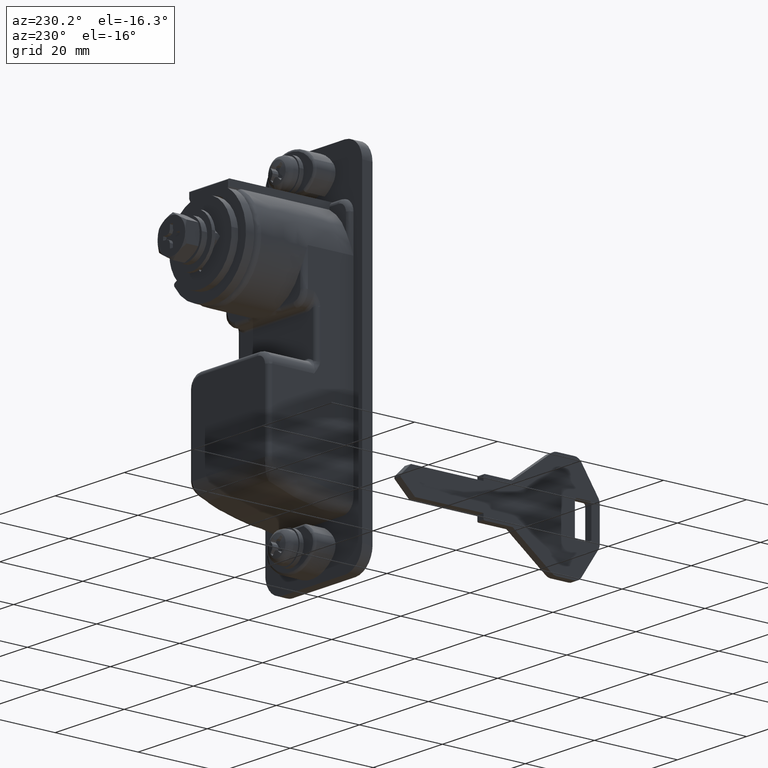
[diagram: clean part render]
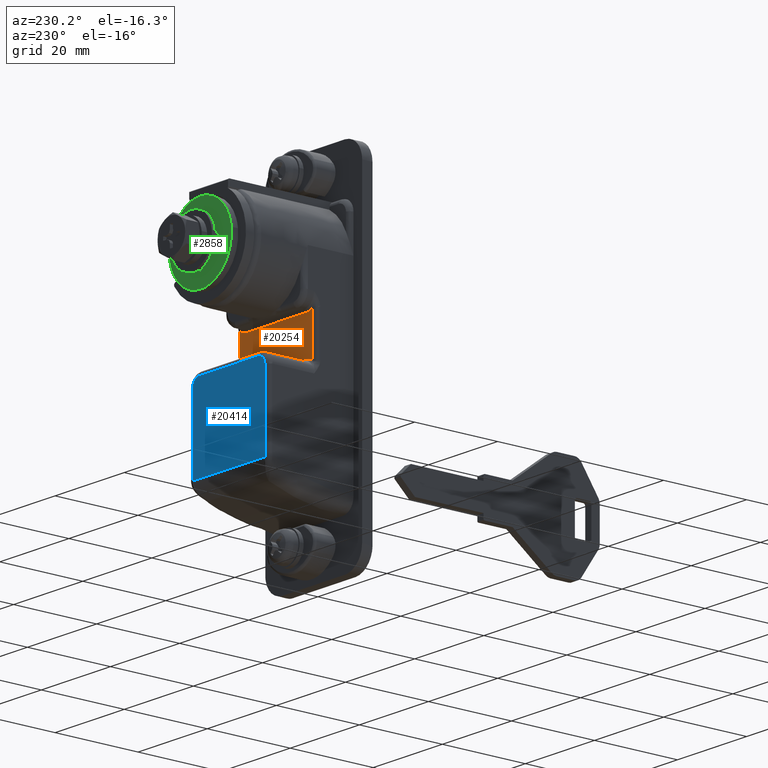
[diagram: same view with three faces highlighted in distinct colors, each labeled with its STEP entity id]
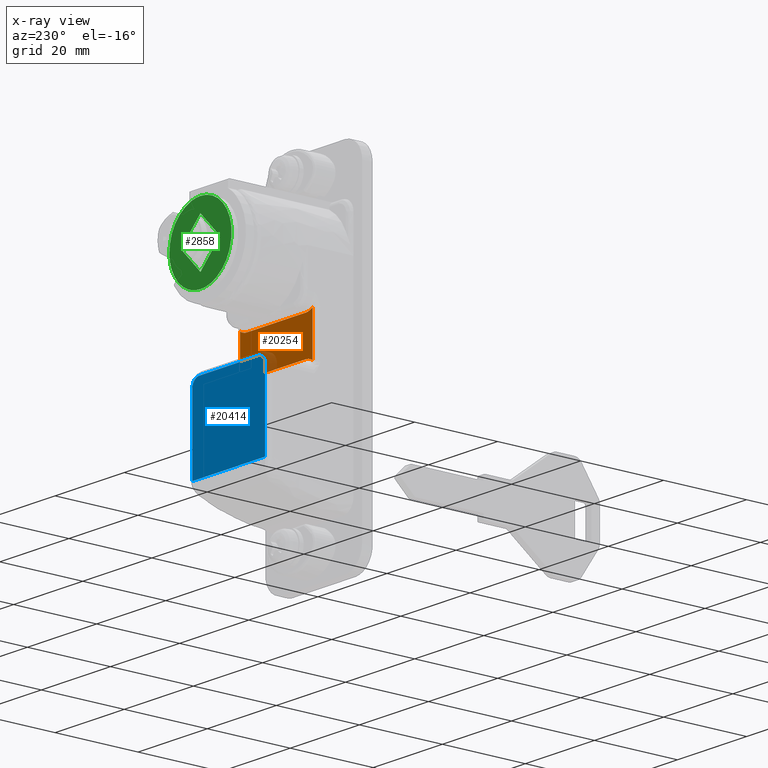
[diagram: x-ray of the same camera — body ghosted, the three highlighted faces saturated]
A machine part, auxiliary view with three faces highlighted in distinct colors.
The next image is the same camera in x-ray (body ghosted, the three faces saturated) — at least one of them is partly hidden behind the body in this view.
Their STEP definitions:

[orange] entity #20254 — the highlighted face is a freeform B-spline surface patch.
#15575=CARTESIAN_POINT('',(10.000000000000201,-10.500000000000000,-21.627718676731099));
#15576=VERTEX_POINT('',#15575);
#15630=CARTESIAN_POINT('',(10.000000000000201,-10.500000000000000,-11.372281323269000));
#15631=VERTEX_POINT('',#15630);
#15653=CARTESIAN_POINT('',(10.000000000000201,-10.500000000000000,-11.372281323269000));
#15654=CARTESIAN_POINT('',(10.000000000000201,-10.500000000000000,-21.627718676731099));
#15655=QUASI_UNIFORM_CURVE('',1,(#15653,#15654),.UNSPECIFIED.,.F.,.U.);
#15656=EDGE_CURVE('',#15631,#15576,#15655,.T.);
#16387=CARTESIAN_POINT('',(10.000000000000201,10.500000000000000,-21.627718676731050));
#16388=VERTEX_POINT('',#16387);
#16471=CARTESIAN_POINT('',(10.000000000000201,10.500000000000000,-11.372281323269020));
#16472=VERTEX_POINT('',#16471);
#16486=CARTESIAN_POINT('',(10.000000000000201,10.500000000000000,-21.627718676731050));
#16487=CARTESIAN_POINT('',(10.000000000000201,10.500000000000000,-11.372281323269020));
#16488=QUASI_UNIFORM_CURVE('',1,(#16486,#16487),.UNSPECIFIED.,.F.,.U.);
#16489=EDGE_CURVE('',#16388,#16472,#16488,.T.);
#18782=CARTESIAN_POINT('',(10.000000000000201,-8.500000000000000,-21.0));
#18783=VERTEX_POINT('',#18782);
#18784=CARTESIAN_POINT('',(10.000000000000201,-10.500000000000000,-21.627718676731099));
#18785=CARTESIAN_POINT('',(10.000000000000199,-9.598507684279261,-20.999999999999996));
#18786=CARTESIAN_POINT('',(10.000000000000201,-8.500000000000000,-21.0));
#18794=(BOUNDED_CURVE()B_SPLINE_CURVE(2,(#18784,#18785,#18786),.UNSPECIFIED.,.F.,.U.)CURVE()GEOMETRIC_REPRESENTATION_ITEM()QUASI_UNIFORM_CURVE()RATIONAL_B_SPLINE_CURVE((1.0,0.954110005881994,1.0))REPRESENTATION_ITEM(''));
#18795=EDGE_CURVE('',#15576,#18783,#18794,.T.);
#18845=CARTESIAN_POINT('',(10.000000000000201,8.500000000000000,-21.0));
#18846=VERTEX_POINT('',#18845);
#18860=CARTESIAN_POINT('',(10.000000000000201,-8.500000000000000,-21.0));
#18861=CARTESIAN_POINT('',(10.000000000000201,8.500000000000000,-21.0));
#18862=QUASI_UNIFORM_CURVE('',1,(#18860,#18861),.UNSPECIFIED.,.F.,.U.);
#18863=EDGE_CURVE('',#18783,#18846,#18862,.T.);
#18905=CARTESIAN_POINT('',(10.000000000000201,8.500000000000000,-21.0));
#18906=CARTESIAN_POINT('',(10.000000000000199,9.598507684279245,-21.0));
#18907=CARTESIAN_POINT('',(10.000000000000201,10.500000000000030,-21.627718676731011));
#18915=(BOUNDED_CURVE()B_SPLINE_CURVE(2,(#18905,#18906,#18907),.UNSPECIFIED.,.F.,.U.)CURVE()GEOMETRIC_REPRESENTATION_ITEM()QUASI_UNIFORM_CURVE()RATIONAL_B_SPLINE_CURVE((1.0,0.954110005881996,1.0))REPRESENTATION_ITEM(''));
#18916=EDGE_CURVE('',#18846,#16388,#18915,.T.);
#18955=CARTESIAN_POINT('',(10.000000000000201,-8.500000000000000,-12.0));
#18956=VERTEX_POINT('',#18955);
#18957=CARTESIAN_POINT('',(10.000000000000201,-8.500000000000000,-12.0));
#18958=CARTESIAN_POINT('',(10.000000000000199,-9.598507684279232,-11.999999999999996));
#18959=CARTESIAN_POINT('',(10.000000000000201,-10.500000000000011,-11.372281323269011));
#18967=(BOUNDED_CURVE()B_SPLINE_CURVE(2,(#18957,#18958,#18959),.UNSPECIFIED.,.F.,.U.)CURVE()GEOMETRIC_REPRESENTATION_ITEM()QUASI_UNIFORM_CURVE()RATIONAL_B_SPLINE_CURVE((1.0,0.954110005881997,1.0))REPRESENTATION_ITEM(''));
#18968=EDGE_CURVE('',#18956,#15631,#18967,.T.);
#19000=CARTESIAN_POINT('',(10.000000000000201,8.500000000000000,-12.0));
#19001=VERTEX_POINT('',#19000);
#19023=CARTESIAN_POINT('',(10.000000000000201,8.500000000000000,-12.0));
#19024=CARTESIAN_POINT('',(10.000000000000201,-8.500000000000000,-12.0));
#19025=QUASI_UNIFORM_CURVE('',1,(#19023,#19024),.UNSPECIFIED.,.F.,.U.);
#19026=EDGE_CURVE('',#19001,#18956,#19025,.T.);
#19048=CARTESIAN_POINT('',(10.000000000000201,10.500000000000000,-11.372281323269020));
#19049=CARTESIAN_POINT('',(10.000000000000199,9.598507684279225,-12.0));
#19050=CARTESIAN_POINT('',(10.000000000000201,8.500000000000000,-12.0));
#19058=(BOUNDED_CURVE()B_SPLINE_CURVE(2,(#19048,#19049,#19050),.UNSPECIFIED.,.F.,.U.)CURVE()GEOMETRIC_REPRESENTATION_ITEM()QUASI_UNIFORM_CURVE()RATIONAL_B_SPLINE_CURVE((1.0,0.954110005881998,1.0))REPRESENTATION_ITEM(''));
#19059=EDGE_CURVE('',#16472,#19001,#19058,.T.);
#20239=CARTESIAN_POINT('',(10.000000000000201,-11.548949959297930,-10.860021995168101));
#20240=CARTESIAN_POINT('',(10.000000000000201,-11.548949959297930,-22.139977271305970));
#20241=CARTESIAN_POINT('',(10.000000000000201,11.548950522561819,-10.860021995168101));
#20242=CARTESIAN_POINT('',(10.000000000000201,11.548950522561819,-22.139977271305970));
#20243=B_SPLINE_SURFACE_WITH_KNOTS('',1,1,((#20239,#20241),(#20240,#20242)),.UNSPECIFIED.,.F.,.F.,.U.,(2,2),(2,2),(0.0,11.279955276137869),(0.0,23.097900481859750),.UNSPECIFIED.);
#20244=ORIENTED_EDGE('',*,*,#18916,.T.);
#20245=ORIENTED_EDGE('',*,*,#16489,.T.);
#20246=ORIENTED_EDGE('',*,*,#19059,.T.);
#20247=ORIENTED_EDGE('',*,*,#19026,.T.);
#20248=ORIENTED_EDGE('',*,*,#18968,.T.);
#20249=ORIENTED_EDGE('',*,*,#15656,.T.);
#20250=ORIENTED_EDGE('',*,*,#18795,.T.);
#20251=ORIENTED_EDGE('',*,*,#18863,.T.);
#20252=EDGE_LOOP('',(#20244,#20245,#20246,#20247,#20248,#20249,#20250,#20251));
#20253=FACE_OUTER_BOUND('',#20252,.T.);
#20254=ADVANCED_FACE('',(#20253),#20243,.T.);

[blue] entity #20414 — the highlighted face is a freeform B-spline surface patch.
#18123=CARTESIAN_POINT('',(21.500000000000000,10.492613913856280,-42.402830094228413));
#18124=VERTEX_POINT('',#18123);
#18149=CARTESIAN_POINT('',(21.500000000000000,10.500000000000000,-42.213741838410847));
#18150=VERTEX_POINT('',#18149);
#18164=CARTESIAN_POINT('',(21.500000000000000,10.492613913856280,-42.402830094228413));
#18165=CARTESIAN_POINT('',(21.500000000000000,10.497541484559401,-42.339896983589639));
#18166=CARTESIAN_POINT('',(21.500000000000000,10.500000000000000,-42.276867427749757));
#18167=CARTESIAN_POINT('',(21.500000000000000,10.500000000000000,-42.213741838410847));
#18168=QUASI_UNIFORM_CURVE('',3,(#18164,#18165,#18166,#18167),.UNSPECIFIED.,.F.,.U.);
#18169=EDGE_CURVE('',#18124,#18150,#18168,.T.);
#18310=CARTESIAN_POINT('',(21.500000000000000,-10.492613913856280,-42.402830094228413));
#18311=VERTEX_POINT('',#18310);
#18351=CARTESIAN_POINT('',(21.500000000000000,-10.492613913856280,-42.402830094228413));
#18352=CARTESIAN_POINT('',(21.500000000000000,10.492613913856280,-42.402830094228413));
#18353=QUASI_UNIFORM_CURVE('',1,(#18351,#18352),.UNSPECIFIED.,.F.,.U.);
#18354=EDGE_CURVE('',#18311,#18124,#18353,.T.);
#18485=CARTESIAN_POINT('',(21.500000000000000,-10.500000000000000,-42.213741838410847));
#18486=VERTEX_POINT('',#18485);
#18508=CARTESIAN_POINT('',(21.500000000000000,-10.500000000000000,-42.213741838410847));
#18509=CARTESIAN_POINT('',(21.500000000000000,-10.500000000000000,-42.276867427749757));
#18510=CARTESIAN_POINT('',(21.500000000000000,-10.497541484559401,-42.339896983589639));
#18511=CARTESIAN_POINT('',(21.500000000000000,-10.492613913856280,-42.402830094228413));
#18512=QUASI_UNIFORM_CURVE('',3,(#18508,#18509,#18510,#18511),.UNSPECIFIED.,.F.,.U.);
#18513=EDGE_CURVE('',#18486,#18311,#18512,.T.);
#18540=CARTESIAN_POINT('',(21.500000000000000,-10.500000000000000,-24.500000000000000));
#18541=VERTEX_POINT('',#18540);
#18542=CARTESIAN_POINT('',(21.500000000000000,-10.500000000000000,-24.500000000000000));
#18543=CARTESIAN_POINT('',(21.500000000000000,-10.500000000000000,-42.213741838410847));
#18544=QUASI_UNIFORM_CURVE('',1,(#18542,#18543),.UNSPECIFIED.,.F.,.U.);
#18545=EDGE_CURVE('',#18541,#18486,#18544,.T.);
#18580=CARTESIAN_POINT('',(21.500000000000000,-8.500000000000000,-22.500000000000000));
#18581=VERTEX_POINT('',#18580);
#18611=CARTESIAN_POINT('',(21.500000000000000,-8.500000000000000,-22.500000000000000));
#18612=CARTESIAN_POINT('',(21.499999999999996,-10.500000000000002,-22.500000000000000));
#18613=CARTESIAN_POINT('',(21.500000000000000,-10.500000000000000,-24.500000000000000));
#18621=(BOUNDED_CURVE()B_SPLINE_CURVE(2,(#18611,#18612,#18613),.UNSPECIFIED.,.F.,.U.)CURVE()GEOMETRIC_REPRESENTATION_ITEM()QUASI_UNIFORM_CURVE()RATIONAL_B_SPLINE_CURVE((1.0,0.707106781186548,1.0))REPRESENTATION_ITEM(''));
#18622=EDGE_CURVE('',#18581,#18541,#18621,.T.);
#18641=CARTESIAN_POINT('',(21.500000000000000,8.500000000000000,-22.500000000000000));
#18642=VERTEX_POINT('',#18641);
#18664=CARTESIAN_POINT('',(21.500000000000000,8.500000000000000,-22.500000000000000));
#18665=CARTESIAN_POINT('',(21.500000000000000,-8.500000000000000,-22.500000000000000));
#18666=QUASI_UNIFORM_CURVE('',1,(#18664,#18665),.UNSPECIFIED.,.F.,.U.);
#18667=EDGE_CURVE('',#18642,#18581,#18666,.T.);
#18689=CARTESIAN_POINT('',(21.500000000000000,10.500000000000000,-24.500000000000000));
#18690=VERTEX_POINT('',#18689);
#18720=CARTESIAN_POINT('',(21.500000000000000,10.500000000000000,-24.500000000000000));
#18721=CARTESIAN_POINT('',(21.499999999999996,10.500000000000002,-22.500000000000000));
#18722=CARTESIAN_POINT('',(21.500000000000000,8.500000000000000,-22.500000000000000));
#18730=(BOUNDED_CURVE()B_SPLINE_CURVE(2,(#18720,#18721,#18722),.UNSPECIFIED.,.F.,.U.)CURVE()GEOMETRIC_REPRESENTATION_ITEM()QUASI_UNIFORM_CURVE()RATIONAL_B_SPLINE_CURVE((1.0,0.707106781186548,1.0))REPRESENTATION_ITEM(''));
#18731=EDGE_CURVE('',#18690,#18642,#18730,.T.);
#18750=CARTESIAN_POINT('',(21.500000000000000,10.500000000000000,-42.213741838410847));
#18751=CARTESIAN_POINT('',(21.500000000000000,10.500000000000000,-24.500000000000000));
#18752=QUASI_UNIFORM_CURVE('',1,(#18750,#18751),.UNSPECIFIED.,.F.,.U.);
#18753=EDGE_CURVE('',#18150,#18690,#18752,.T.);
#20399=CARTESIAN_POINT('',(21.500000000000000,-11.548949959297930,-43.396974550524277));
#20400=CARTESIAN_POINT('',(21.500000000000000,-11.548949959297930,-21.505853230416950));
#20401=CARTESIAN_POINT('',(21.500000000000000,11.548950522561819,-43.396974550524277));
#20402=CARTESIAN_POINT('',(21.500000000000000,11.548950522561819,-21.505853230416950));
#20403=B_SPLINE_SURFACE_WITH_KNOTS('',1,1,((#20399,#20401),(#20400,#20402)),.UNSPECIFIED.,.F.,.F.,.U.,(2,2),(2,2),(0.0,21.891121320107331),(0.0,23.097900481859750),.UNSPECIFIED.);
#20404=ORIENTED_EDGE('',*,*,#18354,.T.);
#20405=ORIENTED_EDGE('',*,*,#18169,.T.);
#20406=ORIENTED_EDGE('',*,*,#18753,.T.);
#20407=ORIENTED_EDGE('',*,*,#18731,.T.);
#20408=ORIENTED_EDGE('',*,*,#18667,.T.);
#20409=ORIENTED_EDGE('',*,*,#18622,.T.);
#20410=ORIENTED_EDGE('',*,*,#18545,.T.);
#20411=ORIENTED_EDGE('',*,*,#18513,.T.);
#20412=EDGE_LOOP('',(#20404,#20405,#20406,#20407,#20408,#20409,#20410,#20411));
#20413=FACE_OUTER_BOUND('',#20412,.T.);
#20414=ADVANCED_FACE('',(#20413),#20403,.F.);

[green] entity #2858 — the highlighted face is a freeform B-spline surface patch.
#2565=CARTESIAN_POINT('',(87.039027000000104,8.937085737255696,1.062308112056367));
#2566=VERTEX_POINT('',#2565);
#2567=CARTESIAN_POINT('',(87.039027000000104,0.0,-9.0));
#2568=VERTEX_POINT('',#2567);
#2569=CARTESIAN_POINT('',(87.039027000000104,8.937085737255696,1.062308112056367));
#2570=CARTESIAN_POINT('',(87.039027000000104,9.0,0.533017077014270));
#2571=CARTESIAN_POINT('',(87.039027000000104,9.0,0.0));
#2572=CARTESIAN_POINT('',(87.039027000000104,9.0,-9.0));
#2573=CARTESIAN_POINT('',(87.039027000000104,0.0,-9.0));
#2581=(BOUNDED_CURVE()B_SPLINE_CURVE(2,(#2569,#2570,#2571,#2572,#2573),.UNSPECIFIED.,.F.,.U.)B_SPLINE_CURVE_WITH_KNOTS((3,2,3),(0.229562473510140,0.250000000000000,0.500000000000000),.UNSPECIFIED.)CURVE()GEOMETRIC_REPRESENTATION_ITEM()RATIONAL_B_SPLINE_CURVE((0.956026754177097,0.976055948327199,1.0,0.707106781186547,1.0))REPRESENTATION_ITEM(''));
#2582=EDGE_CURVE('',#2566,#2568,#2581,.T.);
#2584=CARTESIAN_POINT('',(87.039026999999280,-8.983213712645604,-0.549428241776361));
#2585=VERTEX_POINT('',#2584);
#2586=CARTESIAN_POINT('',(87.039027000000104,0.0,-9.0));
#2587=CARTESIAN_POINT('',(87.039027000000090,-8.466362735744919,-9.000000000000002));
#2588=CARTESIAN_POINT('',(87.039026999999280,-8.983213712645604,-0.549428241776361));
#2596=(BOUNDED_CURVE()B_SPLINE_CURVE(2,(#2586,#2587,#2588),.UNSPECIFIED.,.F.,.U.)B_SPLINE_CURVE_WITH_KNOTS((3,3),(0.500000000000000,0.739333127697763),.UNSPECIFIED.)CURVE()GEOMETRIC_REPRESENTATION_ITEM()RATIONAL_B_SPLINE_CURVE((1.0,0.719603799439645,0.976072396276722))REPRESENTATION_ITEM(''));
#2597=EDGE_CURVE('',#2568,#2585,#2596,.T.);
#2664=CARTESIAN_POINT('',(87.039027000000104,0.0,9.0));
#2665=VERTEX_POINT('',#2664);
#2666=CARTESIAN_POINT('',(87.039027000000104,0.0,9.0));
#2667=CARTESIAN_POINT('',(87.039027000000104,7.993570733300125,9.000000000000002));
#2668=CARTESIAN_POINT('',(87.039027000000104,8.937085737255696,1.062308112056367));
#2676=(BOUNDED_CURVE()B_SPLINE_CURVE(2,(#2666,#2667,#2668),.UNSPECIFIED.,.F.,.U.)B_SPLINE_CURVE_WITH_KNOTS((3,3),(0.0,0.229562473510140),.UNSPECIFIED.)CURVE()GEOMETRIC_REPRESENTATION_ITEM()RATIONAL_B_SPLINE_CURVE((1.0,0.731050832859349,0.956026754177097))REPRESENTATION_ITEM(''));
#2677=EDGE_CURVE('',#2665,#2566,#2676,.T.);
#2711=CARTESIAN_POINT('',(87.039026999999280,-8.983213712645604,-0.549428241776361));
#2712=CARTESIAN_POINT('',(87.039027000000104,-9.0,-0.274970550592479));
#2713=CARTESIAN_POINT('',(87.039027000000104,-9.0,0.0));
#2714=CARTESIAN_POINT('',(87.039027000000104,-9.0,9.0));
#2715=CARTESIAN_POINT('',(87.039027000000104,0.0,9.0));
#2723=(BOUNDED_CURVE()B_SPLINE_CURVE(2,(#2711,#2712,#2713,#2714,#2715),.UNSPECIFIED.,.F.,.U.)B_SPLINE_CURVE_WITH_KNOTS((3,2,3),(0.739333127697763,0.750000000000000,1.0),.UNSPECIFIED.)CURVE()GEOMETRIC_REPRESENTATION_ITEM()RATIONAL_B_SPLINE_CURVE((0.976072396276722,0.987502981746903,1.0,0.707106781186547,1.0))REPRESENTATION_ITEM(''));
#2724=EDGE_CURVE('',#2585,#2665,#2723,.T.);
#2743=CARTESIAN_POINT('',(87.039027000000104,-5.656854249492380,2.168404E-016));
#2744=VERTEX_POINT('',#2743);
#2750=CARTESIAN_POINT('',(87.039027000000104,-4.440892E-016,-5.656854249492380));
#2751=VERTEX_POINT('',#2750);
#2752=CARTESIAN_POINT('',(87.039027000000104,-5.656854249492380,2.168404E-016));
#2753=CARTESIAN_POINT('',(87.039027000000104,-4.440892E-016,-5.656854249492380));
#2754=QUASI_UNIFORM_CURVE('',1,(#2752,#2753),.UNSPECIFIED.,.F.,.U.);
#2755=EDGE_CURVE('',#2744,#2751,#2754,.T.);
#2778=CARTESIAN_POINT('',(87.039027000000104,5.656854249492380,-4.440892E-016));
#2779=VERTEX_POINT('',#2778);
#2780=CARTESIAN_POINT('',(87.039027000000104,-4.440892E-016,-5.656854249492380));
#2781=CARTESIAN_POINT('',(87.039027000000104,5.656854249492380,-4.440892E-016));
#2782=QUASI_UNIFORM_CURVE('',1,(#2780,#2781),.UNSPECIFIED.,.F.,.U.);
#2783=EDGE_CURVE('',#2751,#2779,#2782,.T.);
#2806=CARTESIAN_POINT('',(87.039027000000104,0.0,5.656854249492380));
#2807=VERTEX_POINT('',#2806);
#2808=CARTESIAN_POINT('',(87.039027000000104,5.656854249492380,-4.440892E-016));
#2809=CARTESIAN_POINT('',(87.039027000000104,0.0,5.656854249492380));
#2810=QUASI_UNIFORM_CURVE('',1,(#2808,#2809),.UNSPECIFIED.,.F.,.U.);
#2811=EDGE_CURVE('',#2779,#2807,#2810,.T.);
#2832=CARTESIAN_POINT('',(87.039027000000104,0.0,5.656854249492380));
#2833=CARTESIAN_POINT('',(87.039027000000104,-5.656854249492380,2.168404E-016));
#2834=QUASI_UNIFORM_CURVE('',1,(#2832,#2833),.UNSPECIFIED.,.F.,.U.);
#2835=EDGE_CURVE('',#2807,#2744,#2834,.T.);
#2841=CARTESIAN_POINT('',(87.039027000000104,-9.898881420024884,9.899099965112507));
#2842=CARTESIAN_POINT('',(87.039027000000104,-9.898881420024884,-9.899100447910129));
#2843=CARTESIAN_POINT('',(87.039027000000104,9.898936298021328,9.899099965112507));
#2844=CARTESIAN_POINT('',(87.039027000000104,9.898936298021328,-9.899100447910129));
#2845=B_SPLINE_SURFACE_WITH_KNOTS('',1,1,((#2841,#2843),(#2842,#2844)),.UNSPECIFIED.,.F.,.F.,.U.,(2,2),(2,2),(0.0,19.798200413022631),(0.0,19.797817718046211),.UNSPECIFIED.);
#2846=ORIENTED_EDGE('',*,*,#2724,.F.);
#2847=ORIENTED_EDGE('',*,*,#2597,.F.);
#2848=ORIENTED_EDGE('',*,*,#2582,.F.);
#2849=ORIENTED_EDGE('',*,*,#2677,.F.);
#2850=EDGE_LOOP('',(#2846,#2847,#2848,#2849));
#2851=FACE_OUTER_BOUND('',#2850,.T.);
#2852=ORIENTED_EDGE('',*,*,#2835,.F.);
#2853=ORIENTED_EDGE('',*,*,#2811,.F.);
#2854=ORIENTED_EDGE('',*,*,#2783,.F.);
#2855=ORIENTED_EDGE('',*,*,#2755,.F.);
#2856=EDGE_LOOP('',(#2852,#2853,#2854,#2855));
#2857=FACE_BOUND('',#2856,.T.);
#2858=ADVANCED_FACE('',(#2851,#2857),#2845,.T.);